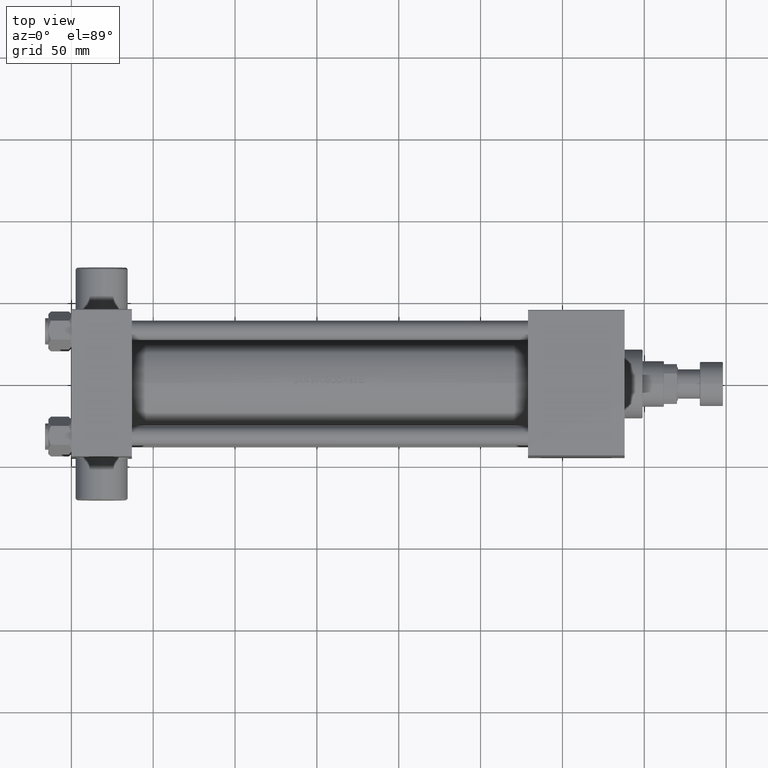
[diagram: clean part render]
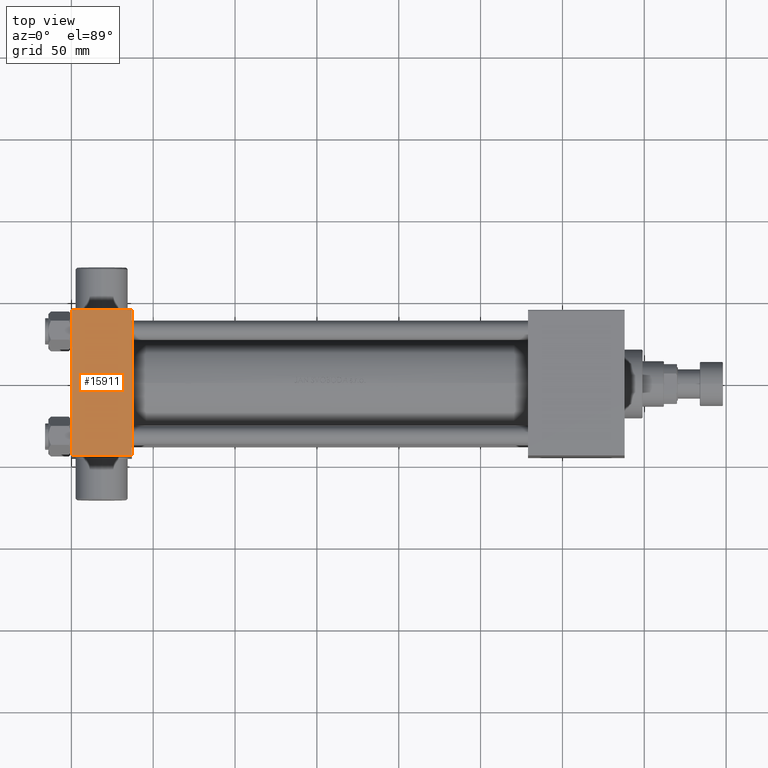
[diagram: same view with one face highlighted and labeled with its STEP entity id]
A machine part, top view. The second image highlights one B-rep face of the part: STEP entity #15911.
In plain terms, the highlighted planar face has unit normal (0, 0, -1).
Its self-contained STEP definition (entity closure, byte-faithful):
#2497 = DIRECTION ( 'NONE',  ( 0.000000000000000000, 1.541976423090495633E-16, -1.000000000000000000 ) ) ;
#3200 = EDGE_LOOP ( 'NONE', ( #42519, #4830, #11572, #39556 ) ) ;
#4355 = EDGE_CURVE ( 'NONE', #15906, #41307, #23331, .T. ) ;
#4830 = ORIENTED_EDGE ( 'NONE', *, *, #6793, .T. ) ;
#6793 = EDGE_CURVE ( 'NONE', #8298, #41307, #15813, .T. ) ;
#7295 = CARTESIAN_POINT ( 'NONE',  ( 37.00000000000000000, -44.49999999999995737, 45.00000000000000000 ) ) ;
#7664 = EDGE_CURVE ( 'NONE', #32279, #8298, #24546, .T. ) ;
#8298 = VERTEX_POINT ( 'NONE', #28393 ) ;
#10050 = PLANE ( 'NONE',  #31403 ) ;
#10742 = FACE_OUTER_BOUND ( 'NONE', #3200, .T. ) ;
#11572 = ORIENTED_EDGE ( 'NONE', *, *, #4355, .F. ) ;
#12249 = DIRECTION ( 'NONE',  ( 1.000000000000000000, 0.000000000000000000, 0.000000000000000000 ) ) ;
#13389 = CARTESIAN_POINT ( 'NONE',  ( 37.00000000000000000, 44.49999999999998579, 45.00000000000001421 ) ) ;
#15813 = LINE ( 'NONE', #45322, #36536 ) ;
#15906 = VERTEX_POINT ( 'NONE', #13389 ) ;
#15911 = ADVANCED_FACE ( 'NONE', ( #10742 ), #10050, .F. ) ;
#17198 = CARTESIAN_POINT ( 'NONE',  ( 0.000000000000000000, 44.49999999999998579, 45.00000000000001421 ) ) ;
#22413 = VECTOR ( 'NONE', #43544, 1000.000000000000000 ) ;
#22972 = VECTOR ( 'NONE', #39189, 1000.000000000000000 ) ;
#23095 = DIRECTION ( 'NONE',  ( 0.000000000000000000, -1.000000000000000000, -1.541976423090495387E-16 ) ) ;
#23331 = LINE ( 'NONE', #30412, #25103 ) ;
#24315 = CARTESIAN_POINT ( 'NONE',  ( 0.000000000000000000, 44.99999999999998579, 45.00000000000001421 ) ) ;
#24546 = LINE ( 'NONE', #24315, #22972 ) ;
#25103 = VECTOR ( 'NONE', #23095, 1000.000000000000000 ) ;
#28393 = CARTESIAN_POINT ( 'NONE',  ( 0.000000000000000000, -44.49999999999995737, 45.00000000000000000 ) ) ;
#29140 = CARTESIAN_POINT ( 'NONE',  ( 0.000000000000000000, 44.49999999999998579, 45.00000000000001421 ) ) ;
#30412 = CARTESIAN_POINT ( 'NONE',  ( 37.00000000000000000, 44.99999999999998579, 45.00000000000001421 ) ) ;
#31403 = AXIS2_PLACEMENT_3D ( 'NONE', #34886, #2497, #42669 ) ;
#32279 = VERTEX_POINT ( 'NONE', #17198 ) ;
#34886 = CARTESIAN_POINT ( 'NONE',  ( 37.00000000000000000, 44.99999999999998579, 45.00000000000001421 ) ) ;
#36230 = LINE ( 'NONE', #29140, #22413 ) ;
#36536 = VECTOR ( 'NONE', #12249, 1000.000000000000000 ) ;
#39189 = DIRECTION ( 'NONE',  ( 0.000000000000000000, -1.000000000000000000, -1.541976423090495387E-16 ) ) ;
#39556 = ORIENTED_EDGE ( 'NONE', *, *, #43653, .T. ) ;
#41307 = VERTEX_POINT ( 'NONE', #7295 ) ;
#42519 = ORIENTED_EDGE ( 'NONE', *, *, #7664, .T. ) ;
#42669 = DIRECTION ( 'NONE',  ( 0.000000000000000000, 1.000000000000000000, 1.541976423090495633E-16 ) ) ;
#43544 = DIRECTION ( 'NONE',  ( -1.000000000000000000, 0.000000000000000000, 0.000000000000000000 ) ) ;
#43653 = EDGE_CURVE ( 'NONE', #15906, #32279, #36230, .T. ) ;
#45322 = CARTESIAN_POINT ( 'NONE',  ( 37.00000000000000000, -44.49999999999998579, 45.00000000000000000 ) ) ;